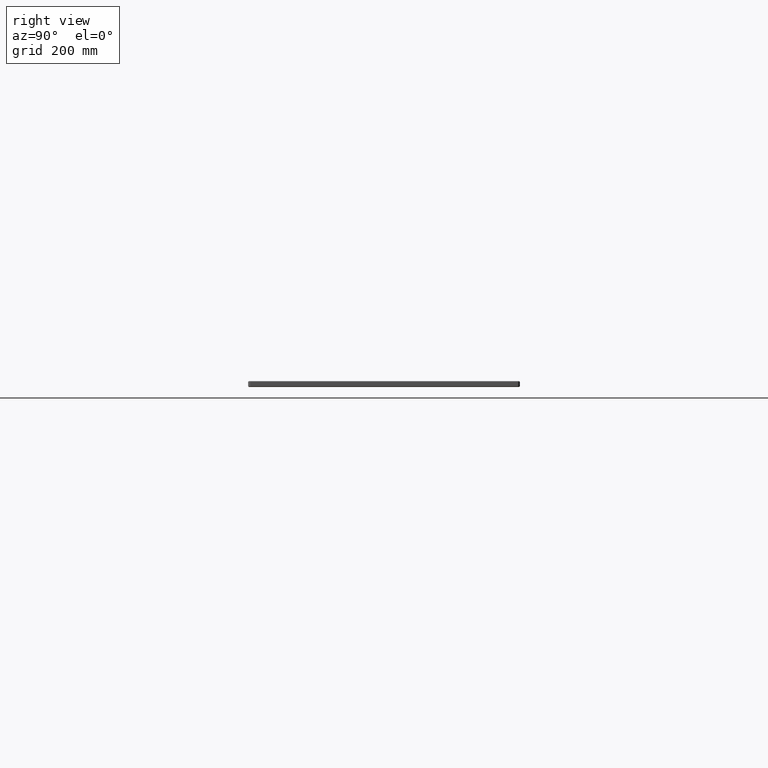
[diagram: clean part render]
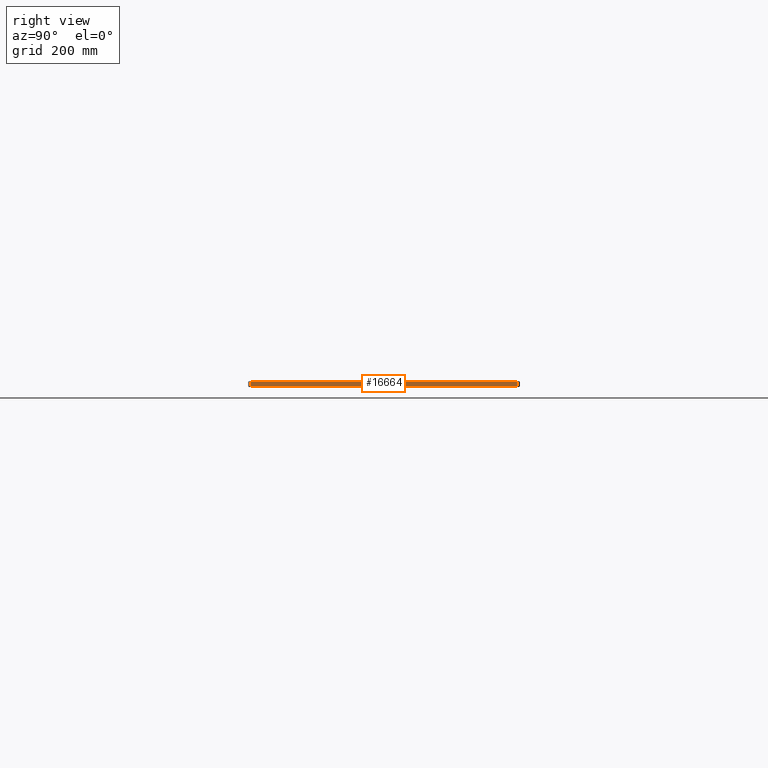
[diagram: same view with one face highlighted and labeled with its STEP entity id]
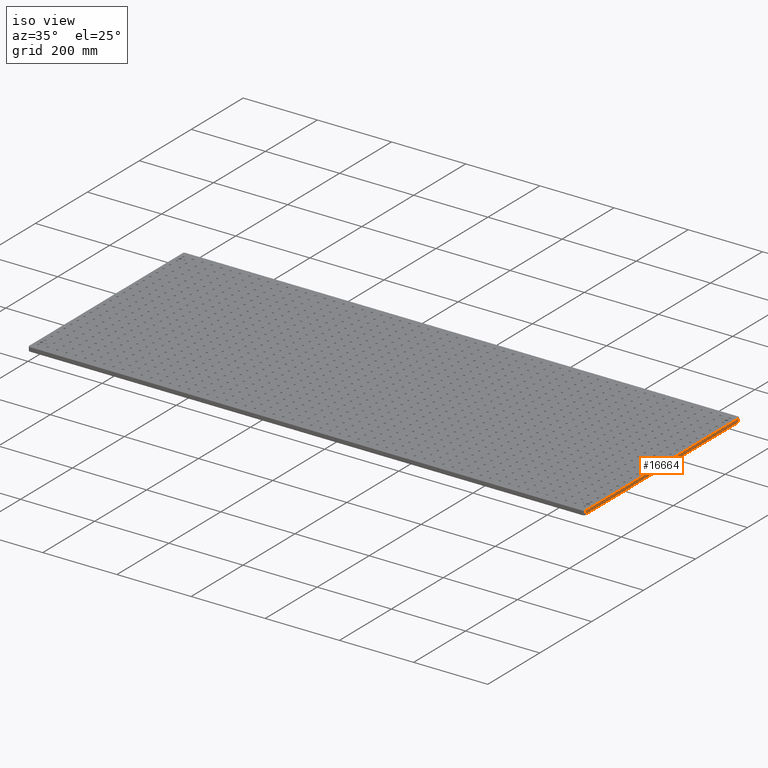
[diagram: same view with one face highlighted and labeled with its STEP entity id]
A machine part, right view. The second image highlights one B-rep face of the part: STEP entity #16664.
A second angle (iso view) of the same face is appended — the face is thin or edge-on in the first view.
In plain terms, the highlighted planar face has unit normal (1, 0, 0).
Its self-contained STEP definition (entity closure, byte-faithful):
#2189 = AXIS2_PLACEMENT_3D ( 'NONE', #98513, #21106, #13213 ) ;
#4016 = CARTESIAN_POINT ( 'NONE',  ( 1500.000000000000000, 595.0000000000000000, -13.00000000000000000 ) ) ;
#5331 = DIRECTION ( 'NONE',  ( 0.0000000000000000000, 0.0000000000000000000, 1.000000000000000000 ) ) ;
#7292 = LINE ( 'NONE', #94904, #67607 ) ;
#7835 = VERTEX_POINT ( 'NONE', #13597 ) ;
#10814 = FACE_OUTER_BOUND ( 'NONE', #40017, .T. ) ;
#13213 = DIRECTION ( 'NONE',  ( 0.0000000000000000000, 0.0000000000000000000, -1.000000000000000000 ) ) ;
#13597 = CARTESIAN_POINT ( 'NONE',  ( 1500.000000000000000, 5.000000000000000000, -2.000000000000001800 ) ) ;
#16664 = ADVANCED_FACE ( 'NONE', ( #10814 ), #83025, .T. ) ;
#21106 = DIRECTION ( 'NONE',  ( 1.000000000000000000, 0.0000000000000000000, 0.0000000000000000000 ) ) ;
#22757 = ORIENTED_EDGE ( 'NONE', *, *, #38219, .F. ) ;
#24989 = CARTESIAN_POINT ( 'NONE',  ( 1500.000000000000000, 5.000000000000000000, -13.00000000000000000 ) ) ;
#28292 = CARTESIAN_POINT ( 'NONE',  ( 1500.000000000000000, 5.000000000000000000, -11.00000000000000000 ) ) ;
#28331 = EDGE_CURVE ( 'NONE', #92649, #94484, #73912, .T. ) ;
#33125 = VERTEX_POINT ( 'NONE', #51493 ) ;
#36529 = DIRECTION ( 'NONE',  ( -0.0000000000000000000, 1.000000000000000000, 0.0000000000000000000 ) ) ;
#38219 = EDGE_CURVE ( 'NONE', #92649, #7835, #50150, .T. ) ;
#40017 = EDGE_LOOP ( 'NONE', ( #22757, #92984, #94373, #74163 ) ) ;
#50150 = LINE ( 'NONE', #24989, #69888 ) ;
#51493 = CARTESIAN_POINT ( 'NONE',  ( 1500.000000000000000, 595.0000000000000000, -2.000000000000003600 ) ) ;
#52834 = CARTESIAN_POINT ( 'NONE',  ( 1500.000000000000000, 5.000000000000000000, -11.00000000000000000 ) ) ;
#54116 = VECTOR ( 'NONE', #36529, 1000.000000000000000 ) ;
#57294 = LINE ( 'NONE', #4016, #90524 ) ;
#66525 = EDGE_CURVE ( 'NONE', #33125, #7835, #7292, .T. ) ;
#67502 = CARTESIAN_POINT ( 'NONE',  ( 1500.000000000000000, 595.0000000000000000, -11.00000000000000000 ) ) ;
#67607 = VECTOR ( 'NONE', #70871, 1000.000000000000000 ) ;
#69888 = VECTOR ( 'NONE', #94794, 1000.000000000000000 ) ;
#70871 = DIRECTION ( 'NONE',  ( -0.0000000000000000000, -1.000000000000000000, 0.0000000000000000000 ) ) ;
#73912 = LINE ( 'NONE', #28292, #54116 ) ;
#74163 = ORIENTED_EDGE ( 'NONE', *, *, #66525, .T. ) ;
#83025 = PLANE ( 'NONE',  #2189 ) ;
#90524 = VECTOR ( 'NONE', #5331, 1000.000000000000000 ) ;
#92649 = VERTEX_POINT ( 'NONE', #52834 ) ;
#92984 = ORIENTED_EDGE ( 'NONE', *, *, #28331, .T. ) ;
#93873 = EDGE_CURVE ( 'NONE', #94484, #33125, #57294, .T. ) ;
#94373 = ORIENTED_EDGE ( 'NONE', *, *, #93873, .T. ) ;
#94484 = VERTEX_POINT ( 'NONE', #67502 ) ;
#94794 = DIRECTION ( 'NONE',  ( 0.0000000000000000000, 0.0000000000000000000, 1.000000000000000000 ) ) ;
#94904 = CARTESIAN_POINT ( 'NONE',  ( 1500.000000000000000, 5.000000000000004400, -2.000000000000000000 ) ) ;
#98513 = CARTESIAN_POINT ( 'NONE',  ( 1500.000000000000000, 5.000000000000000000, -13.00000000000000000 ) ) ;